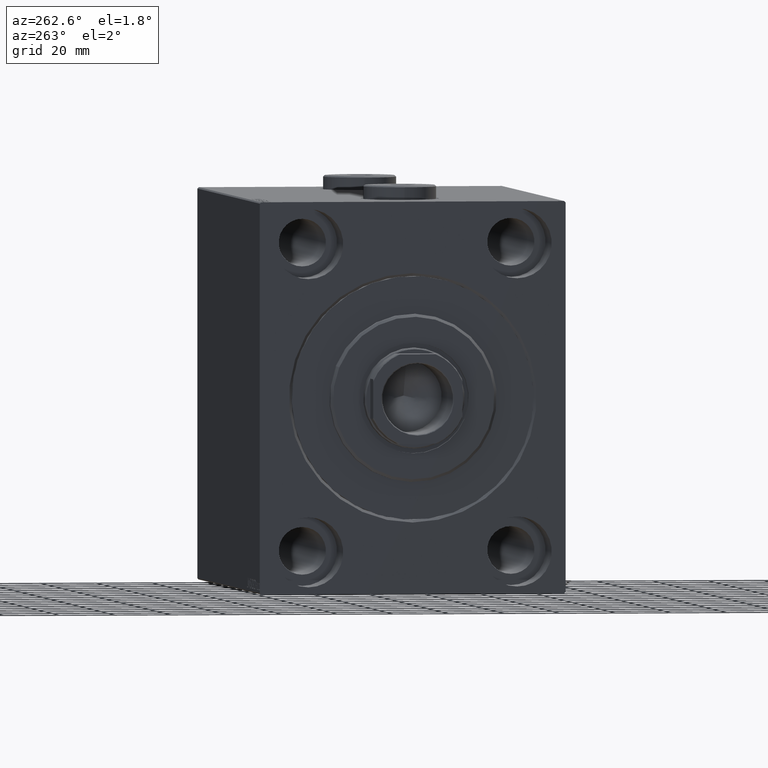
[diagram: clean part render]
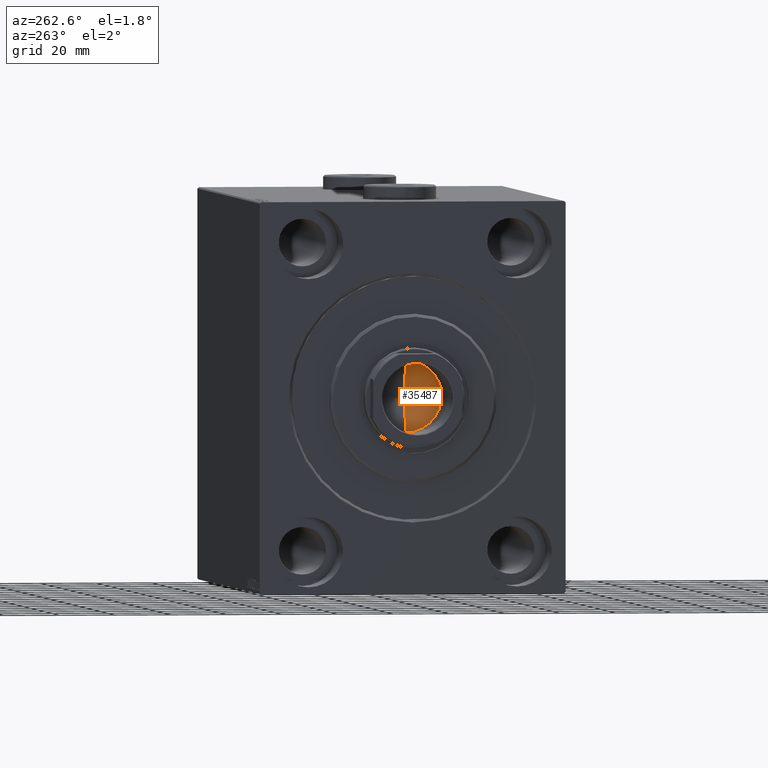
[diagram: same view with one face highlighted and labeled with its STEP entity id]
A machine part, auxiliary view. The second image highlights one B-rep face of the part: STEP entity #35487.
In plain terms, the highlighted conical surface has half-angle 59 deg.
Its self-contained STEP definition (entity closure, byte-faithful):
#74 = CARTESIAN_POINT ( 'NONE',  ( 0.000000000000000000, 0.000000000000000000, 134.0000000000000000 ) ) ;
#1383 = CARTESIAN_POINT ( 'NONE',  ( -1.026246296720136938E-14, 0.000000000000000000, 126.3390271073986071 ) ) ;
#3967 = DIRECTION ( 'NONE',  ( 1.000000000000000000, 0.000000000000000000, 0.000000000000000000 ) ) ;
#5441 = CONICAL_SURFACE ( 'NONE', #6263, 12.74999999999999467, 1.029744258676653645 ) ;
#6125 = DIRECTION ( 'NONE',  ( -0.000000000000000000, -0.000000000000000000, 1.000000000000000000 ) ) ;
#6263 = AXIS2_PLACEMENT_3D ( 'NONE', #37524, #6125, #45299 ) ;
#7028 = ORIENTED_EDGE ( 'NONE', *, *, #18106, .F. ) ;
#7250 = CARTESIAN_POINT ( 'NONE',  ( -12.74999999999999467, 1.561424668912874519E-15, 134.0000000000000000 ) ) ;
#9634 = EDGE_LOOP ( 'NONE', ( #7028, #20424, #38651 ) ) ;
#14367 = EDGE_CURVE ( 'NONE', #17316, #43962, #22121, .T. ) ;
#14694 = DIRECTION ( 'NONE',  ( 0.8571673007021118895, 0.000000000000000000, 0.5150380749100549327 ) ) ;
#17316 = VERTEX_POINT ( 'NONE', #1383 ) ;
#18106 = EDGE_CURVE ( 'NONE', #17316, #22267, #22026, .T. ) ;
#18687 = DIRECTION ( 'NONE',  ( -0.8571673007021118895, 1.049727191138618079E-16, 0.5150380749100549327 ) ) ;
#20424 = ORIENTED_EDGE ( 'NONE', *, *, #14367, .T. ) ;
#20935 = DIRECTION ( 'NONE',  ( -0.000000000000000000, -0.000000000000000000, 1.000000000000000000 ) ) ;
#22026 = LINE ( 'NONE', #35323, #42565 ) ;
#22121 = LINE ( 'NONE', #36104, #42461 ) ;
#22267 = VERTEX_POINT ( 'NONE', #23958 ) ;
#23558 = FACE_OUTER_BOUND ( 'NONE', #9634, .T. ) ;
#23958 = CARTESIAN_POINT ( 'NONE',  ( 12.74999999999999467, 0.000000000000000000, 134.0000000000000000 ) ) ;
#25313 = AXIS2_PLACEMENT_3D ( 'NONE', #74, #20935, #3967 ) ;
#28979 = CIRCLE ( 'NONE', #25313, 12.74999999999999467 ) ;
#35323 = CARTESIAN_POINT ( 'NONE',  ( 12.74999999999999467, 0.000000000000000000, 134.0000000000000000 ) ) ;
#35487 = ADVANCED_FACE ( 'NONE', ( #23558 ), #5441, .F. ) ;
#36104 = CARTESIAN_POINT ( 'NONE',  ( -12.74999999999999467, 1.561424668912874519E-15, 134.0000000000000000 ) ) ;
#37524 = CARTESIAN_POINT ( 'NONE',  ( 0.000000000000000000, 0.000000000000000000, 134.0000000000000000 ) ) ;
#38651 = ORIENTED_EDGE ( 'NONE', *, *, #39037, .T. ) ;
#39037 = EDGE_CURVE ( 'NONE', #43962, #22267, #28979, .T. ) ;
#42461 = VECTOR ( 'NONE', #18687, 1000.000000000000000 ) ;
#42565 = VECTOR ( 'NONE', #14694, 1000.000000000000000 ) ;
#43962 = VERTEX_POINT ( 'NONE', #7250 ) ;
#45299 = DIRECTION ( 'NONE',  ( 1.000000000000000000, 0.000000000000000000, 0.000000000000000000 ) ) ;